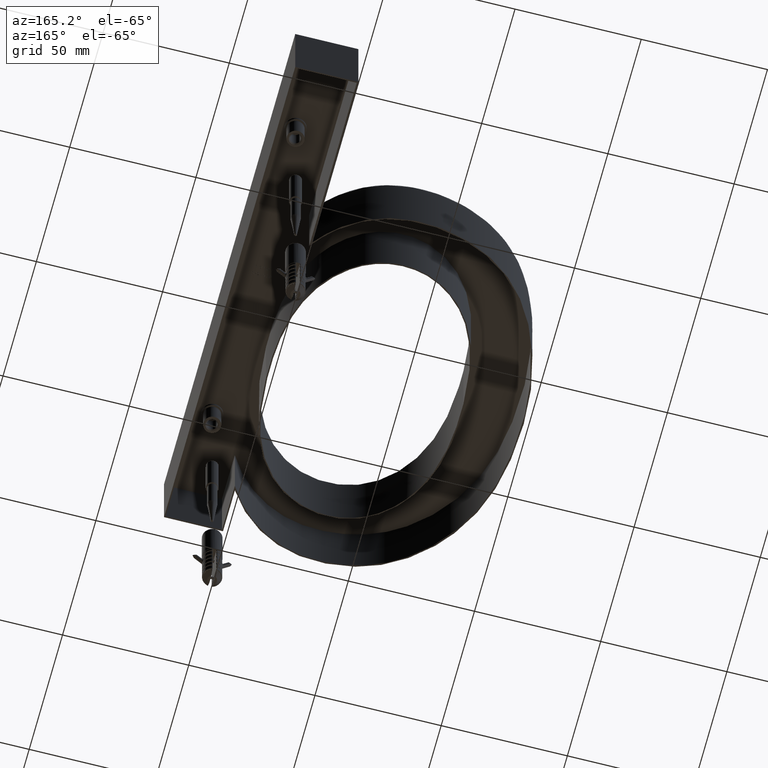
[diagram: clean part render]
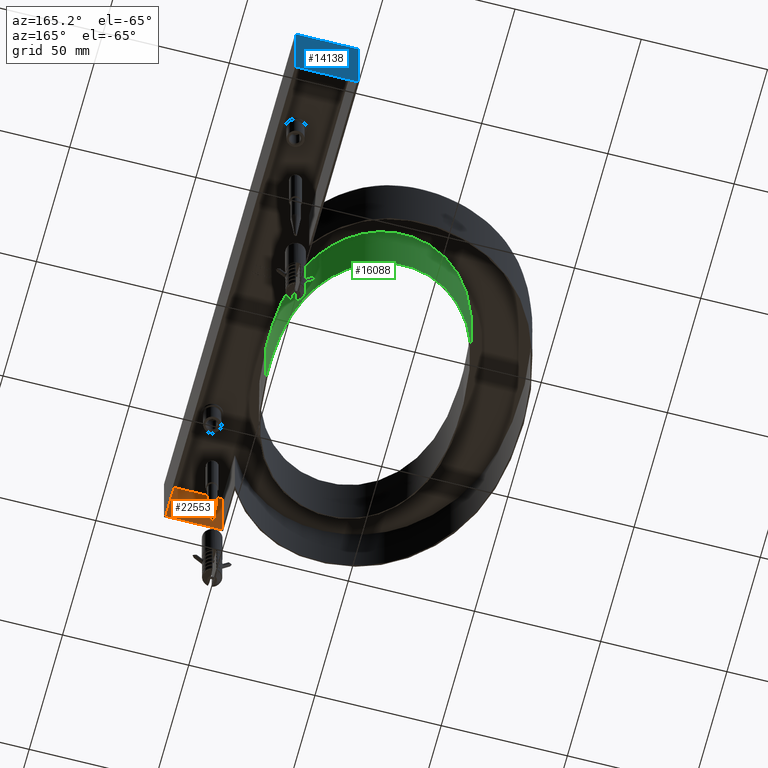
[diagram: same view with three faces highlighted in distinct colors, each labeled with its STEP entity id]
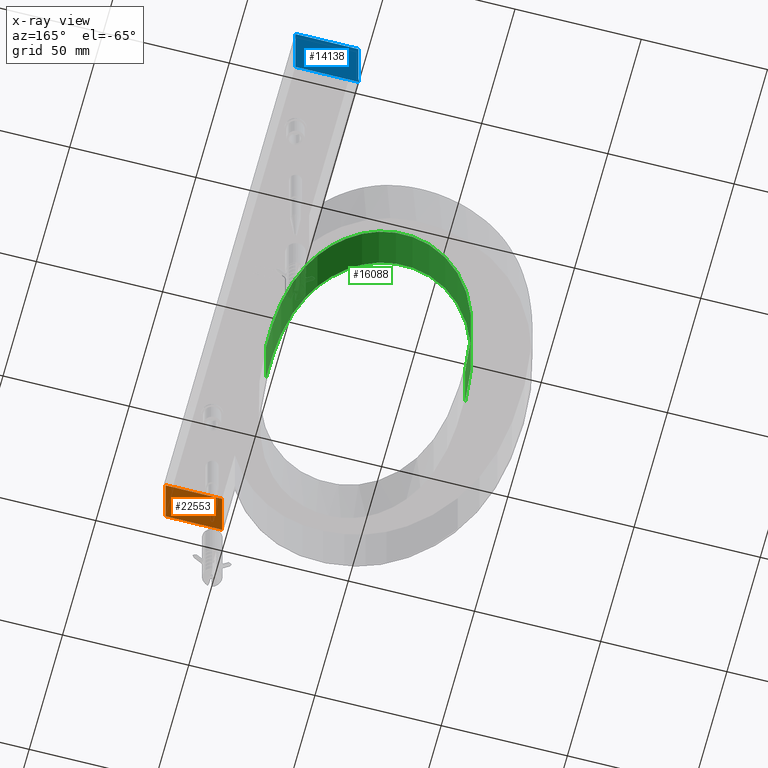
[diagram: x-ray of the same camera — body ghosted, the three highlighted faces saturated]
A machine part, auxiliary view with three faces highlighted in distinct colors.
The next image is the same camera in x-ray (body ghosted, the three faces saturated) — at least one of them is partly hidden behind the body in this view.
Their STEP definitions:

[orange] entity #22553 — the highlighted planar face has unit normal (0, 1, 0).
#157 = VERTEX_POINT ( 'NONE', #10116 ) ;
#1887 = DIRECTION ( 'NONE',  ( 0.0000000000000000000, -0.0000000000000000000, 1.000000000000000000 ) ) ;
#3417 = VERTEX_POINT ( 'NONE', #19452 ) ;
#3443 = ORIENTED_EDGE ( 'NONE', *, *, #20766, .T. ) ;
#3555 = CARTESIAN_POINT ( 'NONE',  ( 9.533602378157507200, 1.354134452543280100, -28.00000000000000000 ) ) ;
#5029 = VECTOR ( 'NONE', #17267, 1000.000000000000000 ) ;
#6339 = ORIENTED_EDGE ( 'NONE', *, *, #15928, .F. ) ;
#6488 = DIRECTION ( 'NONE',  ( -0.0000000000000000000, -0.0000000000000000000, 1.000000000000000000 ) ) ;
#6547 = ORIENTED_EDGE ( 'NONE', *, *, #29089, .F. ) ;
#6749 = PLANE ( 'NONE',  #25646 ) ;
#7579 = LINE ( 'NONE', #26848, #12503 ) ;
#8327 = VERTEX_POINT ( 'NONE', #27698 ) ;
#10116 = CARTESIAN_POINT ( 'NONE',  ( -12.83725356724732500, 1.354134452543273700, 0.0000000000000000000 ) ) ;
#10213 = EDGE_LOOP ( 'NONE', ( #6339, #6547, #21467, #3443 ) ) ;
#10776 = CARTESIAN_POINT ( 'NONE',  ( 0.0000000000000000000, 1.354134452543280100, -28.00000000000000000 ) ) ;
#11434 = LINE ( 'NONE', #16516, #21650 ) ;
#12503 = VECTOR ( 'NONE', #6488, 1000.000000000000000 ) ;
#12880 = VECTOR ( 'NONE', #16831, 1000.000000000000000 ) ;
#14502 = CARTESIAN_POINT ( 'NONE',  ( 0.0000000000000000000, 1.354134452543280100, 0.0000000000000000000 ) ) ;
#15715 = LINE ( 'NONE', #14502, #12880 ) ;
#15928 = EDGE_CURVE ( 'NONE', #28199, #157, #15715, .T. ) ;
#16516 = CARTESIAN_POINT ( 'NONE',  ( 0.0000000000000000000, 1.354134452543280100, -28.00000000000000000 ) ) ;
#16831 = DIRECTION ( 'NONE',  ( -1.000000000000000000, 0.0000000000000000000, 0.0000000000000000000 ) ) ;
#17267 = DIRECTION ( 'NONE',  ( -0.0000000000000000000, -0.0000000000000000000, 1.000000000000000000 ) ) ;
#17677 = FACE_OUTER_BOUND ( 'NONE', #10213, .T. ) ;
#17699 = LINE ( 'NONE', #3555, #5029 ) ;
#19038 = CARTESIAN_POINT ( 'NONE',  ( 9.533602378157507200, 1.354134452543287500, 0.0000000000000000000 ) ) ;
#19452 = CARTESIAN_POINT ( 'NONE',  ( -12.83725356724732500, 1.354134452543280100, -28.00000000000000000 ) ) ;
#20766 = EDGE_CURVE ( 'NONE', #3417, #157, #7579, .T. ) ;
#20943 = EDGE_CURVE ( 'NONE', #8327, #3417, #11434, .T. ) ;
#21467 = ORIENTED_EDGE ( 'NONE', *, *, #20943, .T. ) ;
#21650 = VECTOR ( 'NONE', #25348, 1000.000000000000000 ) ;
#22553 = ADVANCED_FACE ( 'NONE', ( #17677 ), #6749, .T. ) ;
#25348 = DIRECTION ( 'NONE',  ( -1.000000000000000000, 0.0000000000000000000, 0.0000000000000000000 ) ) ;
#25646 = AXIS2_PLACEMENT_3D ( 'NONE', #10776, #28762, #1887 ) ;
#26848 = CARTESIAN_POINT ( 'NONE',  ( -12.83725356724732500, 1.354134452543280100, -28.00000000000000000 ) ) ;
#27698 = CARTESIAN_POINT ( 'NONE',  ( 9.533602378157507200, 1.354134452543280100, -28.00000000000000000 ) ) ;
#28199 = VERTEX_POINT ( 'NONE', #19038 ) ;
#28762 = DIRECTION ( 'NONE',  ( 0.0000000000000000000, 1.000000000000000000, 0.0000000000000000000 ) ) ;
#29089 = EDGE_CURVE ( 'NONE', #8327, #28199, #17699, .T. ) ;

[blue] entity #14138 — the highlighted planar face has unit normal (0, -1, 0).
#411 = ORIENTED_EDGE ( 'NONE', *, *, #11354, .F. ) ;
#873 = DIRECTION ( 'NONE',  ( 1.000000000000000000, 0.0000000000000000000, 0.0000000000000000000 ) ) ;
#2559 = CARTESIAN_POINT ( 'NONE',  ( 10.03360237815750700, 197.6732199396201700, 1.750000000000000000 ) ) ;
#2708 = LINE ( 'NONE', #2559, #17084 ) ;
#3199 = CARTESIAN_POINT ( 'NONE',  ( -14.96639762184251400, 197.6732199396201700, 1.750000000000000000 ) ) ;
#3276 = LINE ( 'NONE', #14605, #25716 ) ;
#4402 = DIRECTION ( 'NONE',  ( 0.0000000000000000000, -1.000000000000000000, 0.0000000000000000000 ) ) ;
#5857 = VECTOR ( 'NONE', #27841, 1000.000000000000000 ) ;
#7093 = CARTESIAN_POINT ( 'NONE',  ( -14.96639762184251400, 197.6732199396201700, 2.000000000000000000 ) ) ;
#7639 = FACE_OUTER_BOUND ( 'NONE', #9083, .T. ) ;
#9083 = EDGE_LOOP ( 'NONE', ( #14592, #11984, #21447, #411 ) ) ;
#9088 = DIRECTION ( 'NONE',  ( 1.000000000000000000, -0.0000000000000000000, -0.0000000000000000000 ) ) ;
#10038 = VERTEX_POINT ( 'NONE', #27492 ) ;
#11354 = EDGE_CURVE ( 'NONE', #10038, #24046, #3276, .T. ) ;
#11516 = DIRECTION ( 'NONE',  ( -0.0000000000000000000, -0.0000000000000000000, -1.000000000000000000 ) ) ;
#11984 = ORIENTED_EDGE ( 'NONE', *, *, #15531, .T. ) ;
#13385 = CARTESIAN_POINT ( 'NONE',  ( 10.03360237815750700, 197.6732199396201700, 1.750000000000000000 ) ) ;
#13438 = DIRECTION ( 'NONE',  ( 0.0000000000000000000, -0.0000000000000000000, -1.000000000000000000 ) ) ;
#14138 = ADVANCED_FACE ( 'NONE', ( #7639 ), #27201, .F. ) ;
#14592 = ORIENTED_EDGE ( 'NONE', *, *, #17693, .F. ) ;
#14605 = CARTESIAN_POINT ( 'NONE',  ( 0.0000000000000000000, 197.6732199396201700, -28.00000000000000000 ) ) ;
#15531 = EDGE_CURVE ( 'NONE', #16308, #22742, #2708, .T. ) ;
#15804 = EDGE_CURVE ( 'NONE', #22742, #24046, #18873, .T. ) ;
#16308 = VERTEX_POINT ( 'NONE', #3199 ) ;
#17084 = VECTOR ( 'NONE', #9088, 1000.000000000000000 ) ;
#17693 = EDGE_CURVE ( 'NONE', #16308, #10038, #19814, .T. ) ;
#18616 = CARTESIAN_POINT ( 'NONE',  ( 10.03360237815750700, 197.6732199396201700, 2.000000000000000000 ) ) ;
#18873 = LINE ( 'NONE', #18616, #5857 ) ;
#19814 = LINE ( 'NONE', #7093, #23378 ) ;
#20195 = CARTESIAN_POINT ( 'NONE',  ( 10.03360237815750700, 197.6732199396201700, 2.000000000000000000 ) ) ;
#21447 = ORIENTED_EDGE ( 'NONE', *, *, #15804, .T. ) ;
#21792 = AXIS2_PLACEMENT_3D ( 'NONE', #20195, #4402, #13438 ) ;
#22742 = VERTEX_POINT ( 'NONE', #13385 ) ;
#23044 = CARTESIAN_POINT ( 'NONE',  ( 10.03360237815750700, 197.6732199396201700, -28.00000000000000000 ) ) ;
#23378 = VECTOR ( 'NONE', #11516, 1000.000000000000000 ) ;
#24046 = VERTEX_POINT ( 'NONE', #23044 ) ;
#25716 = VECTOR ( 'NONE', #873, 1000.000000000000000 ) ;
#27201 = PLANE ( 'NONE',  #21792 ) ;
#27492 = CARTESIAN_POINT ( 'NONE',  ( -14.96639762184251400, 197.6732199396201700, -28.00000000000000000 ) ) ;
#27841 = DIRECTION ( 'NONE',  ( -0.0000000000000000000, -0.0000000000000000000, -1.000000000000000000 ) ) ;

[green] entity #16088 — the highlighted face is a freeform B-spline surface patch.
#29 = CARTESIAN_POINT ( 'NONE',  ( -13.28196286716824800, 86.22492101130389100, -3.469446951953614200E-015 ) ) ;
#452 = CARTESIAN_POINT ( 'NONE',  ( -89.03379164124858400, 79.50933546706376400, -28.00000000000000000 ) ) ;
#1327 = B_SPLINE_SURFACE_WITH_KNOTS ( 'NONE', 3, 1, ( 
 ( #17604, #28417 ),
 ( #14957, #17215 ),
 ( #3785, #13469 ),
 ( #6483, #19934 ),
 ( #2401, #22496 ),
 ( #11394, #28975 ),
 ( #22302, #22216 ),
 ( #8842, #18104 ),
 ( #4430, #17703 ),
 ( #13166, #2006 ),
 ( #9121, #20129 ),
 ( #6775, #28877 ),
 ( #24571, #15437 ),
 ( #22399, #24847 ),
 ( #17921, #6685 ),
 ( #20227, #9025 ),
 ( #8936, #29 ),
 ( #4242, #15735 ),
 ( #8751, #15533 ),
 ( #24755, #24657 ) ),
 .UNSPECIFIED., .F., .F., .F.,
 ( 4, 1, 1, 1, 1, 1, 1, 1, 1, 1, 1, 1, 1, 1, 1, 1, 1, 4 ),
 ( 2, 2 ),
 ( 0.5000000000000000000, 0.5312500000000000000, 0.5625000000000000000, 0.5937500000000000000, 0.6250000000000000000, 0.6562500000000000000, 0.6875000000000000000, 0.7187500000000000000, 0.7500000000000000000, 0.7656250000000000000, 0.7812500000000000000, 0.8125000000000000000, 0.8437500000000000000, 0.8750000000000000000, 0.9062500000000000000, 0.9375000000000000000, 0.9687500000000000000, 1.000000000000000000 ),
 ( 0.0000000000000000000, 1.000000000000000000 ),
 .UNSPECIFIED. ) ;
#2006 = CARTESIAN_POINT ( 'NONE',  ( -48.21698128350121200, 127.3604268762238400, -3.469446951953614200E-015 ) ) ;
#2401 = CARTESIAN_POINT ( 'NONE',  ( -84.29361990489273600, 103.8643010272672000, -28.00000000000000000 ) ) ;
#2764 = B_SPLINE_CURVE_WITH_KNOTS ( 'NONE', 3,
 ( #14300, #452, #5222, #22919, #9436, #25163, #11705, #25463, #7476, #27451, #28027, #3313, #21527, #21144, #3498, #5796, #10226, #14667, #25855, #28119 ),
 .UNSPECIFIED., .F., .F.,
 ( 4, 1, 1, 1, 1, 1, 1, 1, 1, 1, 1, 1, 1, 1, 1, 1, 1, 4 ),
 ( 0.5000000000000000000, 0.5312500000000000000, 0.5625000000000000000, 0.5937500000000000000, 0.6250000000000000000, 0.6562500000000000000, 0.6875000000000000000, 0.7187500000000000000, 0.7500000000000000000, 0.7656250000000000000, 0.7812500000000000000, 0.8125000000000000000, 0.8437500000000000000, 0.8750000000000000000, 0.9062500000000000000, 0.9375000000000000000, 0.9687500000000000000, 1.000000000000000000 ),
 .UNSPECIFIED. ) ;
#2930 = DIRECTION ( 'NONE',  ( -0.0000000000000000000, -0.0000000000000000000, 1.000000000000000000 ) ) ;
#3252 = VERTEX_POINT ( 'NONE', #20586 ) ;
#3313 = CARTESIAN_POINT ( 'NONE',  ( -36.10983444901641800, 123.6833831462348000, -28.00000000000000000 ) ) ;
#3498 = CARTESIAN_POINT ( 'NONE',  ( -18.15331985461326200, 104.2547492909854700, -28.00000000000000000 ) ) ;
#3619 = LINE ( 'NONE', #20127, #8846 ) ;
#3785 = CARTESIAN_POINT ( 'NONE',  ( -88.59750550520611500, 85.68303264256846300, -28.00000000000000000 ) ) ;
#4115 = CARTESIAN_POINT ( 'NONE',  ( -56.28513372024979600, 127.3787634774011500, 0.0000000000000000000 ) ) ;
#4205 = CARTESIAN_POINT ( 'NONE',  ( -89.03379164124858400, 79.50933546706376400, 0.0000000000000000000 ) ) ;
#4242 = CARTESIAN_POINT ( 'NONE',  ( -12.56086400308680200, 76.95654494170047100, -28.00000000000000000 ) ) ;
#4426 = DIRECTION ( 'NONE',  ( -0.0000000000000000000, -0.0000000000000000000, 1.000000000000000000 ) ) ;
#4430 = CARTESIAN_POINT ( 'NONE',  ( -56.28513372024979600, 127.3787634774011500, -28.00000000000000000 ) ) ;
#4496 = CARTESIAN_POINT ( 'NONE',  ( -48.21698128350121200, 127.3604268762238400, 0.0000000000000000000 ) ) ;
#5222 = CARTESIAN_POINT ( 'NONE',  ( -88.59750550520611500, 85.68303264256846300, -28.00000000000000000 ) ) ;
#5796 = CARTESIAN_POINT ( 'NONE',  ( -15.02578267619171700, 95.40954687517313500, -28.00000000000000000 ) ) ;
#6353 = CARTESIAN_POINT ( 'NONE',  ( -18.15331985461326200, 104.2547492909854700, 0.0000000000000000000 ) ) ;
#6483 = CARTESIAN_POINT ( 'NONE',  ( -87.15492601298180400, 94.88581801615137600, -28.00000000000000000 ) ) ;
#6685 = CARTESIAN_POINT ( 'NONE',  ( -18.15331985461326200, 104.2547492909854700, -3.469446951953614200E-015 ) ) ;
#6737 = CARTESIAN_POINT ( 'NONE',  ( -79.75820805167806800, 112.2005152943025600, 0.0000000000000000000 ) ) ;
#6775 = CARTESIAN_POINT ( 'NONE',  ( -36.10983444901641800, 123.6833831462348000, -28.00000000000000000 ) ) ;
#6946 = ORIENTED_EDGE ( 'NONE', *, *, #26016, .F. ) ;
#7476 = CARTESIAN_POINT ( 'NONE',  ( -56.28513372024979600, 127.3787634774011500, -28.00000000000000000 ) ) ;
#8549 = EDGE_CURVE ( 'NONE', #23254, #17566, #14949, .T. ) ;
#8751 = CARTESIAN_POINT ( 'NONE',  ( -12.62090476515507100, 70.77145443775135900, -27.99999999999999600 ) ) ;
#8810 = CARTESIAN_POINT ( 'NONE',  ( -12.56086400308680200, 76.95654494170047100, 0.0000000000000000000 ) ) ;
#8842 = CARTESIAN_POINT ( 'NONE',  ( -65.48389302377356100, 124.6016679978493900, -28.00000000000000000 ) ) ;
#8846 = VECTOR ( 'NONE', #4426, 1000.000000000000000 ) ;
#8936 = CARTESIAN_POINT ( 'NONE',  ( -13.28196286716824800, 86.22492101130389100, -28.00000000000000000 ) ) ;
#9025 = CARTESIAN_POINT ( 'NONE',  ( -15.02578267619171700, 95.40954687517313500, -3.469446951953614200E-015 ) ) ;
#9121 = CARTESIAN_POINT ( 'NONE',  ( -42.00223574766457100, 125.9837461053374700, -28.00000000000000000 ) ) ;
#9374 = ORIENTED_EDGE ( 'NONE', *, *, #10821, .F. ) ;
#9436 = CARTESIAN_POINT ( 'NONE',  ( -84.29361990489273600, 103.8643010272672000, -28.00000000000000000 ) ) ;
#10226 = CARTESIAN_POINT ( 'NONE',  ( -13.28196286716824800, 86.22492101130389100, -28.00000000000000000 ) ) ;
#10821 = EDGE_CURVE ( 'NONE', #27358, #17566, #3619, .T. ) ;
#10863 = CARTESIAN_POINT ( 'NONE',  ( -12.71709691358148400, 67.68198540908876700, -27.99999999999999600 ) ) ;
#11157 = CARTESIAN_POINT ( 'NONE',  ( -65.48389302377356100, 124.6016679978493900, 0.0000000000000000000 ) ) ;
#11394 = CARTESIAN_POINT ( 'NONE',  ( -79.75820805167806800, 112.2005152943025600, -28.00000000000000000 ) ) ;
#11705 = CARTESIAN_POINT ( 'NONE',  ( -73.45039310430507800, 119.3054161452793500, -28.00000000000000000 ) ) ;
#12878 = ORIENTED_EDGE ( 'NONE', *, *, #21440, .T. ) ;
#13166 = CARTESIAN_POINT ( 'NONE',  ( -48.21698128350121200, 127.3604268762238400, -28.00000000000000000 ) ) ;
#13233 = CARTESIAN_POINT ( 'NONE',  ( -88.59750550520611500, 85.68303264256846300, 0.0000000000000000000 ) ) ;
#13332 = CARTESIAN_POINT ( 'NONE',  ( -15.02578267619171700, 95.40954687517313500, 0.0000000000000000000 ) ) ;
#13469 = CARTESIAN_POINT ( 'NONE',  ( -88.59750550520611500, 85.68303264256846300, -3.469446951953614200E-015 ) ) ;
#13540 = ORIENTED_EDGE ( 'NONE', *, *, #8549, .T. ) ;
#13859 = CARTESIAN_POINT ( 'NONE',  ( -89.13339981315860400, 76.41822773753480600, 0.0000000000000000000 ) ) ;
#14300 = CARTESIAN_POINT ( 'NONE',  ( -89.13339981315860400, 76.41822773753480600, -27.99999999999999600 ) ) ;
#14667 = CARTESIAN_POINT ( 'NONE',  ( -12.56086400308680200, 76.95654494170047100, -28.00000000000000000 ) ) ;
#14796 = CARTESIAN_POINT ( 'NONE',  ( -12.71709691358148400, 67.68198540908876700, 0.0000000000000000000 ) ) ;
#14949 = B_SPLINE_CURVE_WITH_KNOTS ( 'NONE', 3,
 ( #24428, #4205, #13233, #15588, #15796, #6737, #28848, #11157, #4115, #4496, #28931, #19789, #17879, #26803, #6353, #13332, #22264, #8810, #15498, #24626 ),
 .UNSPECIFIED., .F., .F.,
 ( 4, 1, 1, 1, 1, 1, 1, 1, 1, 1, 1, 1, 1, 1, 1, 1, 1, 4 ),
 ( 0.5000000000000000000, 0.5312500000000000000, 0.5625000000000000000, 0.5937500000000000000, 0.6250000000000000000, 0.6562500000000000000, 0.6875000000000000000, 0.7187500000000000000, 0.7500000000000000000, 0.7656250000000000000, 0.7812500000000000000, 0.8125000000000000000, 0.8437500000000000000, 0.8750000000000000000, 0.9062500000000000000, 0.9375000000000000000, 0.9687500000000000000, 1.000000000000000000 ),
 .UNSPECIFIED. ) ;
#14957 = CARTESIAN_POINT ( 'NONE',  ( -89.03379164124858400, 79.50933546706376400, -28.00000000000000000 ) ) ;
#15437 = CARTESIAN_POINT ( 'NONE',  ( -29.48392742798544900, 119.2858353005453300, -3.469446951953614200E-015 ) ) ;
#15498 = CARTESIAN_POINT ( 'NONE',  ( -12.62090476515507100, 70.77145443775135900, 0.0000000000000000000 ) ) ;
#15533 = CARTESIAN_POINT ( 'NONE',  ( -12.62090476515507100, 70.77145443775135900, 0.0000000000000000000 ) ) ;
#15588 = CARTESIAN_POINT ( 'NONE',  ( -87.15492601298180400, 94.88581801615137600, 0.0000000000000000000 ) ) ;
#15735 = CARTESIAN_POINT ( 'NONE',  ( -12.56086400308680200, 76.95654494170047100, -3.469446951953614200E-015 ) ) ;
#15796 = CARTESIAN_POINT ( 'NONE',  ( -84.29361990489273600, 103.8643010272672000, 0.0000000000000000000 ) ) ;
#16088 = ADVANCED_FACE ( 'NONE', ( #28687 ), #1327, .F. ) ;
#17215 = CARTESIAN_POINT ( 'NONE',  ( -89.03379164124858400, 79.50933546706376400, -3.469446951953614200E-015 ) ) ;
#17460 = EDGE_LOOP ( 'NONE', ( #6946, #12878, #13540, #9374 ) ) ;
#17566 = VERTEX_POINT ( 'NONE', #14796 ) ;
#17604 = CARTESIAN_POINT ( 'NONE',  ( -89.13339981315860400, 76.41822773753480600, -27.99999999999999600 ) ) ;
#17703 = CARTESIAN_POINT ( 'NONE',  ( -56.28513372024979600, 127.3787634774011500, -3.469446951953614200E-015 ) ) ;
#17879 = CARTESIAN_POINT ( 'NONE',  ( -29.48392742798544900, 119.2858353005453300, 0.0000000000000000000 ) ) ;
#17921 = CARTESIAN_POINT ( 'NONE',  ( -18.15331985461326200, 104.2547492909854700, -28.00000000000000000 ) ) ;
#18104 = CARTESIAN_POINT ( 'NONE',  ( -65.48389302377356100, 124.6016679978493900, -3.469446951953614200E-015 ) ) ;
#19789 = CARTESIAN_POINT ( 'NONE',  ( -36.10983444901641800, 123.6833831462348000, 0.0000000000000000000 ) ) ;
#19934 = CARTESIAN_POINT ( 'NONE',  ( -87.15492601298180400, 94.88581801615137600, -3.469446951953614200E-015 ) ) ;
#20127 = CARTESIAN_POINT ( 'NONE',  ( -12.71709691358148400, 67.68198540908876700, -27.99999999999999600 ) ) ;
#20129 = CARTESIAN_POINT ( 'NONE',  ( -42.00223574766457100, 125.9837461053374700, -3.469446951953614200E-015 ) ) ;
#20227 = CARTESIAN_POINT ( 'NONE',  ( -15.02578267619171700, 95.40954687517313500, -28.00000000000000000 ) ) ;
#20586 = CARTESIAN_POINT ( 'NONE',  ( -89.13339981315860400, 76.41822773753480600, -27.99999999999999600 ) ) ;
#21144 = CARTESIAN_POINT ( 'NONE',  ( -23.00708209255433100, 112.3399669034723300, -28.00000000000000000 ) ) ;
#21440 = EDGE_CURVE ( 'NONE', #3252, #23254, #23733, .T. ) ;
#21527 = CARTESIAN_POINT ( 'NONE',  ( -29.48392742798544900, 119.2858353005453300, -28.00000000000000000 ) ) ;
#22216 = CARTESIAN_POINT ( 'NONE',  ( -73.45039310430507800, 119.3054161452793500, -3.469446951953614200E-015 ) ) ;
#22264 = CARTESIAN_POINT ( 'NONE',  ( -13.28196286716824800, 86.22492101130389100, 0.0000000000000000000 ) ) ;
#22302 = CARTESIAN_POINT ( 'NONE',  ( -73.45039310430507800, 119.3054161452793500, -28.00000000000000000 ) ) ;
#22399 = CARTESIAN_POINT ( 'NONE',  ( -23.00708209255433100, 112.3399669034723300, -28.00000000000000000 ) ) ;
#22496 = CARTESIAN_POINT ( 'NONE',  ( -84.29361990489273600, 103.8643010272672000, -3.469446951953614200E-015 ) ) ;
#22919 = CARTESIAN_POINT ( 'NONE',  ( -87.15492601298180400, 94.88581801615137600, -28.00000000000000000 ) ) ;
#23035 = CARTESIAN_POINT ( 'NONE',  ( -89.13339981315860400, 76.41822773753480600, -27.99999999999999600 ) ) ;
#23254 = VERTEX_POINT ( 'NONE', #13859 ) ;
#23733 = LINE ( 'NONE', #23035, #25484 ) ;
#24428 = CARTESIAN_POINT ( 'NONE',  ( -89.13339981315860400, 76.41822773753480600, 0.0000000000000000000 ) ) ;
#24571 = CARTESIAN_POINT ( 'NONE',  ( -29.48392742798544900, 119.2858353005453300, -28.00000000000000000 ) ) ;
#24626 = CARTESIAN_POINT ( 'NONE',  ( -12.71709691358148400, 67.68198540908876700, 0.0000000000000000000 ) ) ;
#24657 = CARTESIAN_POINT ( 'NONE',  ( -12.71709691358148400, 67.68198540908876700, 0.0000000000000000000 ) ) ;
#24755 = CARTESIAN_POINT ( 'NONE',  ( -12.71709691358148400, 67.68198540908876700, -27.99999999999999600 ) ) ;
#24847 = CARTESIAN_POINT ( 'NONE',  ( -23.00708209255433100, 112.3399669034723300, -3.469446951953614200E-015 ) ) ;
#25163 = CARTESIAN_POINT ( 'NONE',  ( -79.75820805167806800, 112.2005152943025600, -28.00000000000000000 ) ) ;
#25463 = CARTESIAN_POINT ( 'NONE',  ( -65.48389302377356100, 124.6016679978493900, -28.00000000000000000 ) ) ;
#25484 = VECTOR ( 'NONE', #2930, 1000.000000000000000 ) ;
#25855 = CARTESIAN_POINT ( 'NONE',  ( -12.62090476515507100, 70.77145443775135900, -27.99999999999999600 ) ) ;
#26016 = EDGE_CURVE ( 'NONE', #3252, #27358, #2764, .T. ) ;
#26803 = CARTESIAN_POINT ( 'NONE',  ( -23.00708209255433100, 112.3399669034723300, 0.0000000000000000000 ) ) ;
#27358 = VERTEX_POINT ( 'NONE', #10863 ) ;
#27451 = CARTESIAN_POINT ( 'NONE',  ( -48.21698128350121200, 127.3604268762238400, -28.00000000000000000 ) ) ;
#28027 = CARTESIAN_POINT ( 'NONE',  ( -42.00223574766457100, 125.9837461053374700, -28.00000000000000000 ) ) ;
#28119 = CARTESIAN_POINT ( 'NONE',  ( -12.71709691358148400, 67.68198540908876700, -27.99999999999999600 ) ) ;
#28417 = CARTESIAN_POINT ( 'NONE',  ( -89.13339981315860400, 76.41822773753480600, 0.0000000000000000000 ) ) ;
#28687 = FACE_OUTER_BOUND ( 'NONE', #17460, .T. ) ;
#28848 = CARTESIAN_POINT ( 'NONE',  ( -73.45039310430507800, 119.3054161452793500, 0.0000000000000000000 ) ) ;
#28877 = CARTESIAN_POINT ( 'NONE',  ( -36.10983444901641800, 123.6833831462348000, -3.469446951953614200E-015 ) ) ;
#28931 = CARTESIAN_POINT ( 'NONE',  ( -42.00223574766457100, 125.9837461053374700, 0.0000000000000000000 ) ) ;
#28975 = CARTESIAN_POINT ( 'NONE',  ( -79.75820805167806800, 112.2005152943025600, -3.469446951953614200E-015 ) ) ;